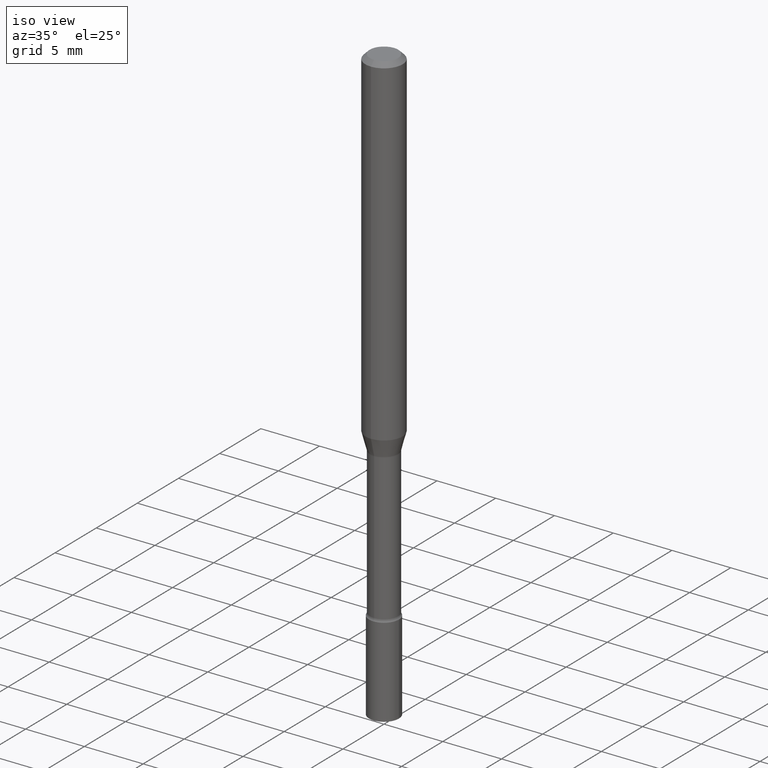
[diagram: clean part render]
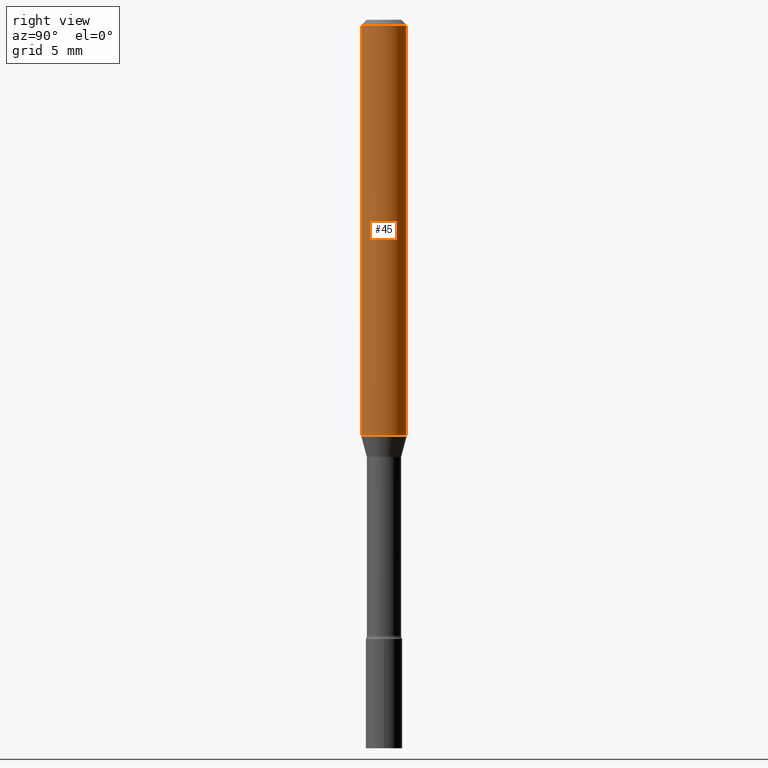
[diagram: tour spotlight — one face highlighted and labeled with its STEP entity id]
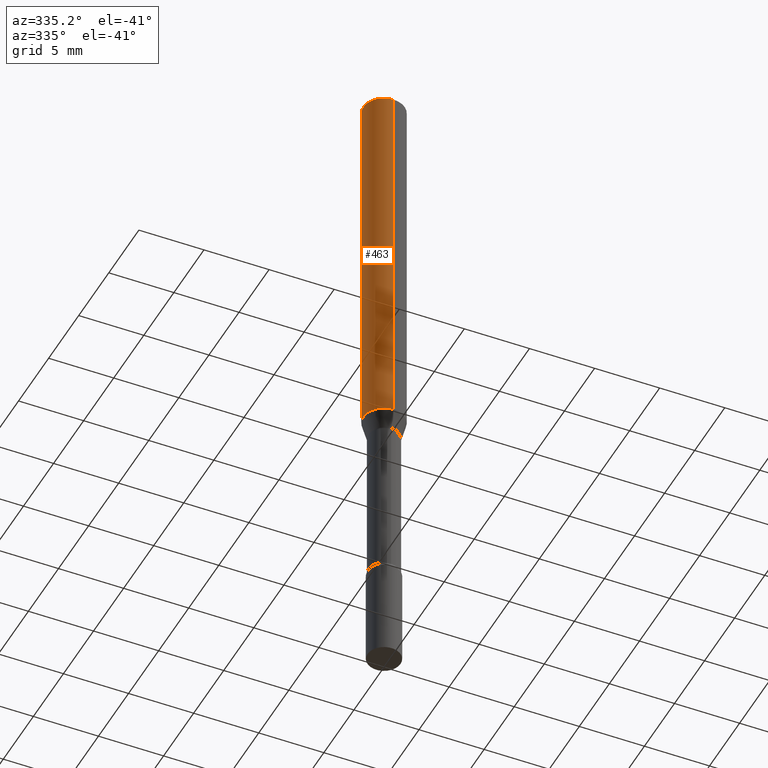
[diagram: tour spotlight — one face highlighted and labeled with its STEP entity id]
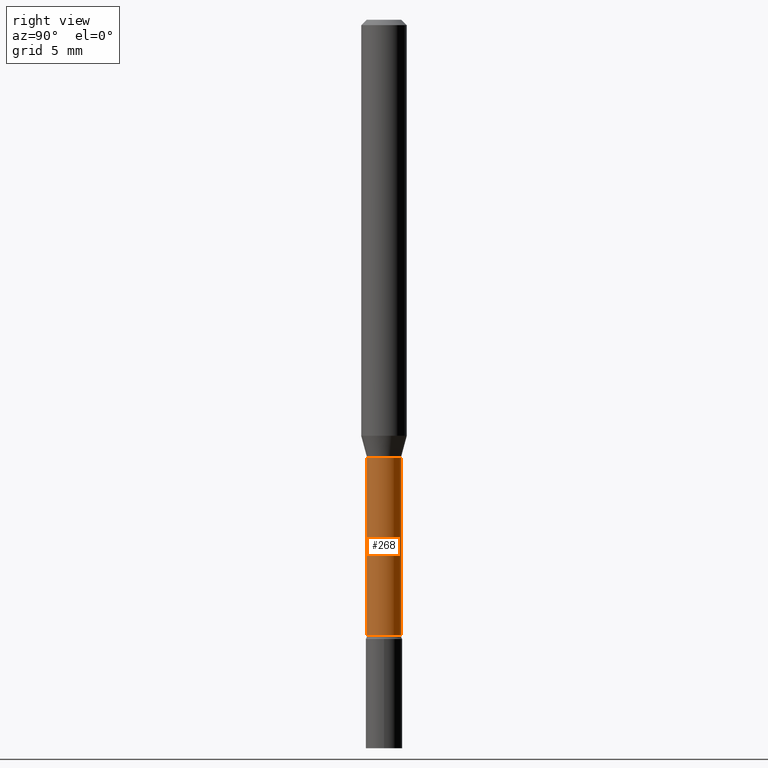
[diagram: tour spotlight — one face highlighted and labeled with its STEP entity id]
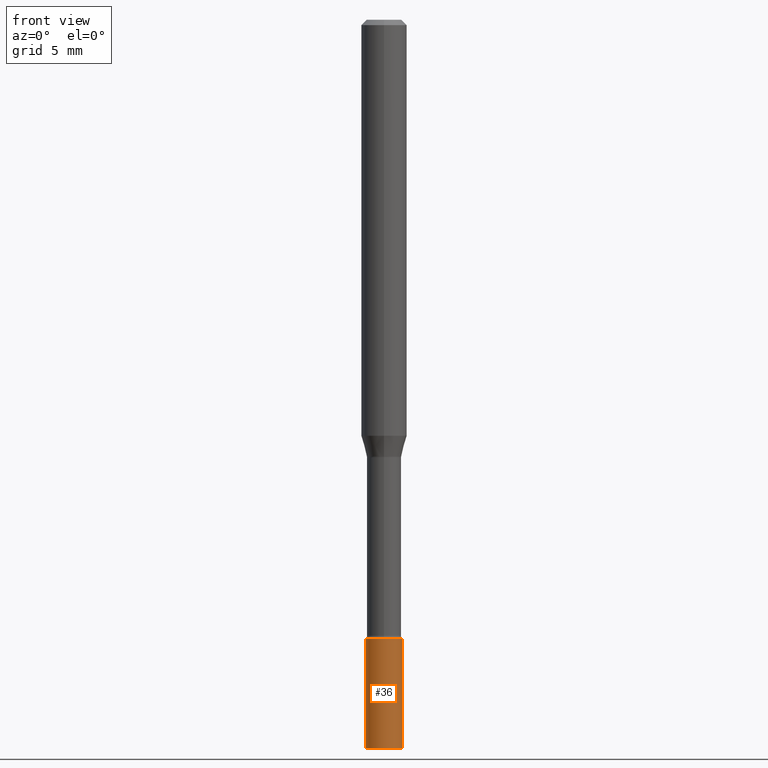
[diagram: tour spotlight — one face highlighted and labeled with its STEP entity id]
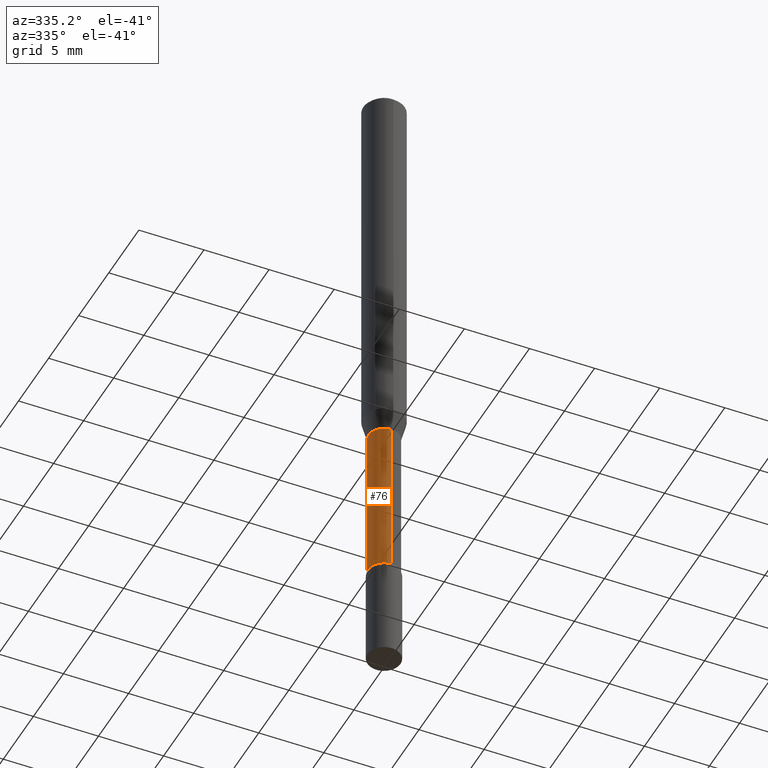
[diagram: tour spotlight — one face highlighted and labeled with its STEP entity id]
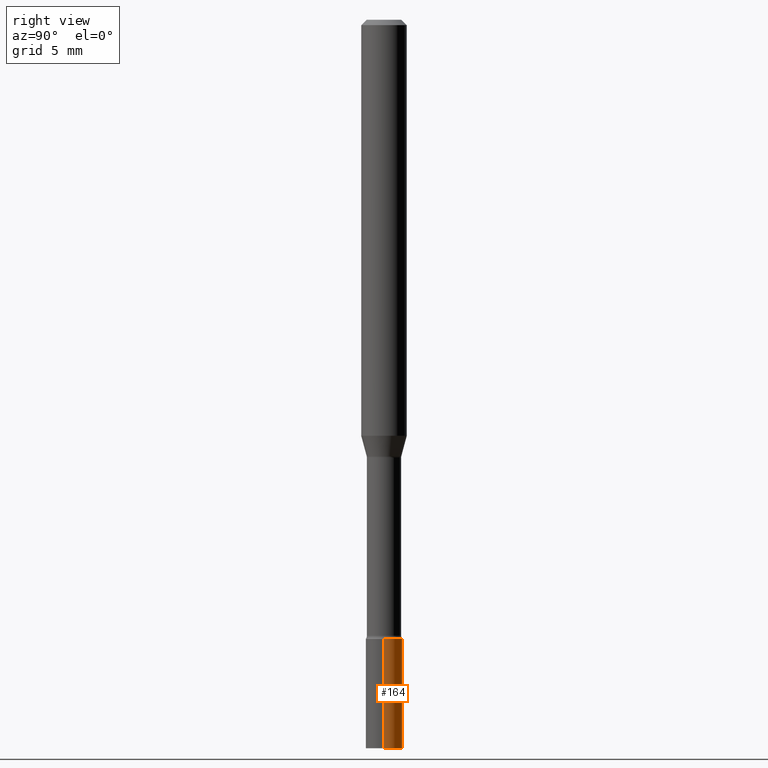
[diagram: tour spotlight — one face highlighted and labeled with its STEP entity id]
A machine part: a face-by-face anatomy tour. The part has 18 B-rep faces; the first image is the clean iso view, then the 6 largest visible faces are spotlighted one at a time (largest first), each with its STEP entity span.

Face 1 — right view, entity #45. In plain terms, the highlighted cylindrical surface (edge-blend (fillet) strip) has radius 1.5875 mm, axis along (-0, 0, 1).
Definition (entity closure, byte-faithful):
#14 = CARTESIAN_POINT ( 'NONE',  ( 3.668101936909137820E-31, -5.237367036060592707E-17, -0.01500000000000003067 ) ) ;
#19 = VERTEX_POINT ( 'NONE', #382 ) ;
#40 = DIRECTION ( 'NONE',  ( -2.445401291272753794E-29, 3.491578024040387972E-15, 1.000000000000000000 ) ) ;
#45 = ADVANCED_FACE ( 'NONE', ( #433 ), #389, .T. ) ;
#71 = CIRCLE ( 'NONE', #313, 0.06250000000000000000 ) ;
#90 = CARTESIAN_POINT ( 'NONE',  ( -4.364351673553912750E-16, -0.06250000000000005551, -0.01499999999999981209 ) ) ;
#116 = EDGE_CURVE ( 'NONE', #19, #227, #289, .T. ) ;
#118 = LINE ( 'NONE', #210, #460 ) ;
#120 = CARTESIAN_POINT ( 'NONE',  ( 2.793022940636475492E-29, -3.987917056791665682E-15, -1.142153212482682312 ) ) ;
#155 = DIRECTION ( 'NONE',  ( -2.445401291272753794E-29, 3.491578024040387972E-15, 1.000000000000000000 ) ) ;
#163 = DIRECTION ( 'NONE',  ( -2.445401291272753794E-29, 3.491578024040387972E-15, 1.000000000000000000 ) ) ;
#165 = CIRCLE ( 'NONE', #231, 0.06250000000000000000 ) ;
#173 = EDGE_CURVE ( 'NONE', #227, #484, #71, .T. ) ;
#207 = DIRECTION ( 'NONE',  ( -6.982962677686265922E-15, -1.000000000000000000, 4.370956789862821150E-15 ) ) ;
#210 = CARTESIAN_POINT ( 'NONE',  ( 4.440892098500625669E-16, 0.06250000000000000000, -2.182236265025242483E-16 ) ) ;
#219 = CARTESIAN_POINT ( 'NONE',  ( 4.440892098500904235E-16, 0.06249999999999600320, -1.142153212482682756 ) ) ;
#221 = EDGE_LOOP ( 'NONE', ( #497, #374, #333, #511 ) ) ;
#227 = VERTEX_POINT ( 'NONE', #90 ) ;
#231 = AXIS2_PLACEMENT_3D ( 'NONE', #120, #40, #207 ) ;
#245 = VERTEX_POINT ( 'NONE', #219 ) ;
#289 = LINE ( 'NONE', #294, #499 ) ;
#294 = CARTESIAN_POINT ( 'NONE',  ( -4.364351673553916201E-16, -0.06250000000000000000, 2.182236265025242483E-16 ) ) ;
#313 = AXIS2_PLACEMENT_3D ( 'NONE', #14, #378, #495 ) ;
#333 = ORIENTED_EDGE ( 'NONE', *, *, #173, .F. ) ;
#364 = EDGE_CURVE ( 'NONE', #245, #484, #118, .T. ) ;
#372 = EDGE_CURVE ( 'NONE', #19, #245, #165, .T. ) ;
#374 = ORIENTED_EDGE ( 'NONE', *, *, #364, .T. ) ;
#378 = DIRECTION ( 'NONE',  ( -2.445401291272753794E-29, 3.491578024040387972E-15, 1.000000000000000000 ) ) ;
#382 = CARTESIAN_POINT ( 'NONE',  ( -4.364351673553637635E-16, -0.06250000000000399680, -1.142153212482682090 ) ) ;
#389 = CYLINDRICAL_SURFACE ( 'NONE', #406, 0.06250000000000000000 ) ;
#406 = AXIS2_PLACEMENT_3D ( 'NONE', #507, #163, #445 ) ;
#433 = FACE_OUTER_BOUND ( 'NONE', #221, .T. ) ;
#445 = DIRECTION ( 'NONE',  ( -6.982962677686265922E-15, -1.000000000000000000, 3.491578024040387972E-15 ) ) ;
#446 = DIRECTION ( 'NONE',  ( -2.445401291272753794E-29, 3.491578024040387972E-15, 1.000000000000000000 ) ) ;
#460 = VECTOR ( 'NONE', #446, 39.37007874015748143 ) ;
#475 = CARTESIAN_POINT ( 'NONE',  ( 4.440892098500906207E-16, 0.06249999999999993755, -0.01500000000000024751 ) ) ;
#484 = VERTEX_POINT ( 'NONE', #475 ) ;
#495 = DIRECTION ( 'NONE',  ( -6.982962677686265922E-15, -1.000000000000000000, 3.483106191921935554E-15 ) ) ;
#497 = ORIENTED_EDGE ( 'NONE', *, *, #372, .T. ) ;
#499 = VECTOR ( 'NONE', #155, 39.37007874015748143 ) ;
#507 = CARTESIAN_POINT ( 'NONE',  ( 0.000000000000000000, 0.000000000000000000, 0.000000000000000000 ) ) ;
#511 = ORIENTED_EDGE ( 'NONE', *, *, #116, .F. ) ;

Face 2 — auxiliary view, entity #463. In plain terms, the highlighted cylindrical surface (edge-blend (fillet) strip) has radius 1.5875 mm, axis along (-0, 0, 1).
Definition (entity closure, byte-faithful):
#19 = VERTEX_POINT ( 'NONE', #382 ) ;
#31 = DIRECTION ( 'NONE',  ( -2.445401291272753794E-29, 3.491578024040387972E-15, 1.000000000000000000 ) ) ;
#32 = DIRECTION ( 'NONE',  ( -2.445401291272753794E-29, 3.491578024040387972E-15, 1.000000000000000000 ) ) ;
#70 = EDGE_LOOP ( 'NONE', ( #412, #199, #104, #387 ) ) ;
#75 = CARTESIAN_POINT ( 'NONE',  ( 0.000000000000000000, 0.000000000000000000, 0.000000000000000000 ) ) ;
#90 = CARTESIAN_POINT ( 'NONE',  ( -4.364351673553912750E-16, -0.06250000000000005551, -0.01499999999999981209 ) ) ;
#96 = AXIS2_PLACEMENT_3D ( 'NONE', #335, #491, #420 ) ;
#104 = ORIENTED_EDGE ( 'NONE', *, *, #116, .T. ) ;
#116 = EDGE_CURVE ( 'NONE', #19, #227, #289, .T. ) ;
#118 = LINE ( 'NONE', #210, #460 ) ;
#129 = CIRCLE ( 'NONE', #96, 0.06250000000000000000 ) ;
#154 = FACE_OUTER_BOUND ( 'NONE', #70, .T. ) ;
#155 = DIRECTION ( 'NONE',  ( -2.445401291272753794E-29, 3.491578024040387972E-15, 1.000000000000000000 ) ) ;
#188 = EDGE_CURVE ( 'NONE', #484, #227, #129, .T. ) ;
#199 = ORIENTED_EDGE ( 'NONE', *, *, #510, .T. ) ;
#210 = CARTESIAN_POINT ( 'NONE',  ( 4.440892098500625669E-16, 0.06250000000000000000, -2.182236265025242483E-16 ) ) ;
#211 = CYLINDRICAL_SURFACE ( 'NONE', #500, 0.06250000000000000000 ) ;
#219 = CARTESIAN_POINT ( 'NONE',  ( 4.440892098500904235E-16, 0.06249999999999600320, -1.142153212482682756 ) ) ;
#227 = VERTEX_POINT ( 'NONE', #90 ) ;
#240 = DIRECTION ( 'NONE',  ( -6.982962677686265922E-15, -1.000000000000000000, 4.370956789862821150E-15 ) ) ;
#245 = VERTEX_POINT ( 'NONE', #219 ) ;
#283 = CARTESIAN_POINT ( 'NONE',  ( 2.793022940636475492E-29, -3.987917056791665682E-15, -1.142153212482682312 ) ) ;
#289 = LINE ( 'NONE', #294, #499 ) ;
#294 = CARTESIAN_POINT ( 'NONE',  ( -4.364351673553916201E-16, -0.06250000000000000000, 2.182236265025242483E-16 ) ) ;
#335 = CARTESIAN_POINT ( 'NONE',  ( 3.668101936909137820E-31, -5.237367036060592707E-17, -0.01500000000000003067 ) ) ;
#346 = CIRCLE ( 'NONE', #365, 0.06250000000000000000 ) ;
#364 = EDGE_CURVE ( 'NONE', #245, #484, #118, .T. ) ;
#365 = AXIS2_PLACEMENT_3D ( 'NONE', #283, #32, #240 ) ;
#382 = CARTESIAN_POINT ( 'NONE',  ( -4.364351673553637635E-16, -0.06250000000000399680, -1.142153212482682090 ) ) ;
#387 = ORIENTED_EDGE ( 'NONE', *, *, #188, .F. ) ;
#412 = ORIENTED_EDGE ( 'NONE', *, *, #364, .F. ) ;
#420 = DIRECTION ( 'NONE',  ( -6.982962677686265922E-15, -1.000000000000000000, 3.483106191921935554E-15 ) ) ;
#446 = DIRECTION ( 'NONE',  ( -2.445401291272753794E-29, 3.491578024040387972E-15, 1.000000000000000000 ) ) ;
#460 = VECTOR ( 'NONE', #446, 39.37007874015748143 ) ;
#463 = ADVANCED_FACE ( 'NONE', ( #154 ), #211, .T. ) ;
#475 = CARTESIAN_POINT ( 'NONE',  ( 4.440892098500906207E-16, 0.06249999999999993755, -0.01500000000000024751 ) ) ;
#484 = VERTEX_POINT ( 'NONE', #475 ) ;
#491 = DIRECTION ( 'NONE',  ( -2.445401291272753794E-29, 3.491578024040387972E-15, 1.000000000000000000 ) ) ;
#499 = VECTOR ( 'NONE', #155, 39.37007874015748143 ) ;
#500 = AXIS2_PLACEMENT_3D ( 'NONE', #75, #31, #514 ) ;
#510 = EDGE_CURVE ( 'NONE', #245, #19, #346, .T. ) ;
#514 = DIRECTION ( 'NONE',  ( -6.982962677686265922E-15, -1.000000000000000000, 3.491578024040387972E-15 ) ) ;

Face 3 — right view, entity #268. In plain terms, the highlighted cylindrical surface (edge-blend (fillet) strip) has radius 1.1938 mm, axis along (-0, 0, 1).
Definition (entity closure, byte-faithful):
#7 = DIRECTION ( 'NONE',  ( -2.445401291272753794E-29, 3.491578024040387972E-15, 1.000000000000000000 ) ) ;
#13 = DIRECTION ( 'NONE',  ( -2.445401291272753794E-29, 3.491578024040387972E-15, 1.000000000000000000 ) ) ;
#92 = DIRECTION ( 'NONE',  ( -6.982962677686265922E-15, -1.000000000000000000, 2.906221269855598900E-15 ) ) ;
#93 = CARTESIAN_POINT ( 'NONE',  ( -3.281992458512548490E-16, -0.04700000000000004868, 1.641041671298983710E-16 ) ) ;
#117 = DIRECTION ( 'NONE',  ( -2.445401291272753794E-29, 3.491578024040387972E-15, 1.000000000000000000 ) ) ;
#122 = AXIS2_PLACEMENT_3D ( 'NONE', #254, #13, #253 ) ;
#131 = LINE ( 'NONE', #93, #147 ) ;
#133 = EDGE_CURVE ( 'NONE', #468, #193, #151, .T. ) ;
#134 = CARTESIAN_POINT ( 'NONE',  ( 2.939310697341296923E-29, -4.196788753359257996E-15, -1.201974787463810701 ) ) ;
#139 = VERTEX_POINT ( 'NONE', #287 ) ;
#147 = VECTOR ( 'NONE', #343, 39.37007874015748143 ) ;
#151 = LINE ( 'NONE', #236, #205 ) ;
#158 = AXIS2_PLACEMENT_3D ( 'NONE', #485, #7, #458 ) ;
#167 = CYLINDRICAL_SURFACE ( 'NONE', #158, 0.04700000000000004868 ) ;
#178 = EDGE_CURVE ( 'NONE', #139, #503, #131, .T. ) ;
#193 = VERTEX_POINT ( 'NONE', #496 ) ;
#200 = CARTESIAN_POINT ( 'NONE',  ( 3.446132268436902621E-16, 0.04699999999999417838, -1.691000000000000281 ) ) ;
#205 = VECTOR ( 'NONE', #117, 39.37007874015748143 ) ;
#220 = EDGE_CURVE ( 'NONE', #503, #193, #397, .T. ) ;
#236 = CARTESIAN_POINT ( 'NONE',  ( 3.339550858072473347E-16, 0.04700000000000004868, -1.641041671298983710E-16 ) ) ;
#243 = CARTESIAN_POINT ( 'NONE',  ( -3.281992458512251188E-16, -0.04700000000000420508, -1.201974787463810701 ) ) ;
#250 = EDGE_CURVE ( 'NONE', #139, #468, #356, .T. ) ;
#253 = DIRECTION ( 'NONE',  ( -6.982962677686265133E-15, -1.000000000000000000, 5.812442539711187545E-15 ) ) ;
#254 = CARTESIAN_POINT ( 'NONE',  ( 4.135173583542227475E-29, -5.904258438652295538E-15, -1.691000000000000059 ) ) ;
#263 = ORIENTED_EDGE ( 'NONE', *, *, #220, .F. ) ;
#268 = ADVANCED_FACE ( 'NONE', ( #336 ), #167, .T. ) ;
#287 = CARTESIAN_POINT ( 'NONE',  ( -3.281992458512137296E-16, -0.04700000000000599532, -1.690999999999999837 ) ) ;
#303 = DIRECTION ( 'NONE',  ( -2.445401291272753794E-29, 3.491578024040387972E-15, 1.000000000000000000 ) ) ;
#310 = EDGE_LOOP ( 'NONE', ( #398, #486, #263, #351 ) ) ;
#336 = FACE_OUTER_BOUND ( 'NONE', #310, .T. ) ;
#343 = DIRECTION ( 'NONE',  ( -2.445401291272753794E-29, 3.491578024040387972E-15, 1.000000000000000000 ) ) ;
#351 = ORIENTED_EDGE ( 'NONE', *, *, #178, .F. ) ;
#356 = CIRCLE ( 'NONE', #122, 0.04700000000000009032 ) ;
#397 = CIRCLE ( 'NONE', #450, 0.04700000000000000705 ) ;
#398 = ORIENTED_EDGE ( 'NONE', *, *, #250, .T. ) ;
#450 = AXIS2_PLACEMENT_3D ( 'NONE', #134, #303, #92 ) ;
#458 = DIRECTION ( 'NONE',  ( -6.982962677686265922E-15, -1.000000000000000000, 3.491578024040387183E-15 ) ) ;
#468 = VERTEX_POINT ( 'NONE', #200 ) ;
#485 = CARTESIAN_POINT ( 'NONE',  ( 0.000000000000000000, 0.000000000000000000, 0.000000000000000000 ) ) ;
#486 = ORIENTED_EDGE ( 'NONE', *, *, #133, .T. ) ;
#496 = CARTESIAN_POINT ( 'NONE',  ( 3.339550858072887499E-16, 0.04699999999999580208, -1.201974787463810923 ) ) ;
#503 = VERTEX_POINT ( 'NONE', #243 ) ;

Face 4 — front view, entity #36. In plain terms, the highlighted cylindrical surface (edge-blend (fillet) strip) has radius 1.27 mm, axis along (-0, 0, 1).
Definition (entity closure, byte-faithful):
#15 = CARTESIAN_POINT ( 'NONE',  ( 4.890937612370273194E-29, -6.982962677686291165E-15, -2.000000000000000000 ) ) ;
#18 = DIRECTION ( 'NONE',  ( -2.445468806185136597E-29, 3.491481338843145583E-15, 1.000000000000000000 ) ) ;
#24 = FACE_OUTER_BOUND ( 'NONE', #321, .T. ) ;
#29 = VECTOR ( 'NONE', #362, 39.37007874015748143 ) ;
#36 = ADVANCED_FACE ( 'NONE', ( #24 ), #470, .T. ) ;
#97 = AXIS2_PLACEMENT_3D ( 'NONE', #435, #101, #428 ) ;
#98 = ORIENTED_EDGE ( 'NONE', *, *, #305, .T. ) ;
#101 = DIRECTION ( 'NONE',  ( -2.445468806185136597E-29, 3.491481338843145583E-15, 1.000000000000000000 ) ) ;
#107 = VERTEX_POINT ( 'NONE', #371 ) ;
#112 = CIRCLE ( 'NONE', #380, 0.05000000000000000278 ) ;
#136 = VERTEX_POINT ( 'NONE', #396 ) ;
#171 = CARTESIAN_POINT ( 'NONE',  ( 4.157296970514731878E-29, -5.935518276033347214E-15, -1.699999999999999956 ) ) ;
#172 = EDGE_CURVE ( 'NONE', #107, #136, #112, .T. ) ;
#177 = DIRECTION ( 'NONE',  ( 1.000000000000000000, -6.982962677686274599E-15, 0.000000000000000000 ) ) ;
#203 = CARTESIAN_POINT ( 'NONE',  ( -0.05000000000000000278, 3.552713678800501127E-16, -2.459467545127453311E-30 ) ) ;
#222 = DIRECTION ( 'NONE',  ( -2.445468806185136597E-29, 3.491481338843145583E-15, 1.000000000000000000 ) ) ;
#232 = VECTOR ( 'NONE', #454, 39.37007874015748143 ) ;
#234 = ORIENTED_EDGE ( 'NONE', *, *, #347, .F. ) ;
#248 = CARTESIAN_POINT ( 'NONE',  ( 0.05000000000000000278, -6.284666409917660550E-15, -1.699999999999999956 ) ) ;
#279 = EDGE_CURVE ( 'NONE', #519, #304, #302, .T. ) ;
#288 = CARTESIAN_POINT ( 'NONE',  ( -0.05000000000000000278, -6.103969108979769176E-15, -1.699999999999999956 ) ) ;
#295 = ORIENTED_EDGE ( 'NONE', *, *, #279, .F. ) ;
#302 = CIRCLE ( 'NONE', #329, 0.05000000000000000278 ) ;
#304 = VERTEX_POINT ( 'NONE', #248 ) ;
#305 = EDGE_CURVE ( 'NONE', #136, #304, #334, .T. ) ;
#321 = EDGE_LOOP ( 'NONE', ( #234, #467, #98, #295 ) ) ;
#329 = AXIS2_PLACEMENT_3D ( 'NONE', #171, #222, #177 ) ;
#334 = LINE ( 'NONE', #410, #232 ) ;
#347 = EDGE_CURVE ( 'NONE', #107, #519, #402, .T. ) ;
#362 = DIRECTION ( 'NONE',  ( -2.445468806185136877E-29, 3.491481338843145188E-15, 1.000000000000000000 ) ) ;
#371 = CARTESIAN_POINT ( 'NONE',  ( -0.05000000000000000278, -6.103969108979769176E-15, -2.000000000000000000 ) ) ;
#380 = AXIS2_PLACEMENT_3D ( 'NONE', #15, #18, #417 ) ;
#396 = CARTESIAN_POINT ( 'NONE',  ( 0.05000000000000000278, -7.332110811570605290E-15, -2.000000000000000000 ) ) ;
#402 = LINE ( 'NONE', #203, #29 ) ;
#410 = CARTESIAN_POINT ( 'NONE',  ( 0.05000000000000000278, -3.491481338843133848E-16, 2.438088387897968247E-30 ) ) ;
#417 = DIRECTION ( 'NONE',  ( 1.000000000000000000, -6.982962677686274599E-15, 0.000000000000000000 ) ) ;
#428 = DIRECTION ( 'NONE',  ( 1.000000000000000000, -6.982962677686267499E-15, 4.876176775795936353E-29 ) ) ;
#435 = CARTESIAN_POINT ( 'NONE',  ( 0.000000000000000000, 0.000000000000000000, 0.000000000000000000 ) ) ;
#454 = DIRECTION ( 'NONE',  ( -2.445468806185136877E-29, 3.491481338843145188E-15, 1.000000000000000000 ) ) ;
#467 = ORIENTED_EDGE ( 'NONE', *, *, #172, .T. ) ;
#470 = CYLINDRICAL_SURFACE ( 'NONE', #97, 0.05000000000000000278 ) ;
#519 = VERTEX_POINT ( 'NONE', #288 ) ;

Face 5 — auxiliary view, entity #76. In plain terms, the highlighted cylindrical surface (edge-blend (fillet) strip) has radius 1.1938 mm, axis along (-0, 0, 1).
Definition (entity closure, byte-faithful):
#25 = ORIENTED_EDGE ( 'NONE', *, *, #50, .F. ) ;
#50 = EDGE_CURVE ( 'NONE', #193, #503, #166, .T. ) ;
#56 = ORIENTED_EDGE ( 'NONE', *, *, #178, .T. ) ;
#72 = DIRECTION ( 'NONE',  ( -2.445401291272753794E-29, 3.491578024040387972E-15, 1.000000000000000000 ) ) ;
#76 = ADVANCED_FACE ( 'NONE', ( #411 ), #124, .T. ) ;
#81 = CIRCLE ( 'NONE', #509, 0.04700000000000009032 ) ;
#83 = CARTESIAN_POINT ( 'NONE',  ( 0.000000000000000000, 0.000000000000000000, 0.000000000000000000 ) ) ;
#87 = DIRECTION ( 'NONE',  ( -6.982962677686265922E-15, -1.000000000000000000, 2.906221269855598900E-15 ) ) ;
#93 = CARTESIAN_POINT ( 'NONE',  ( -3.281992458512548490E-16, -0.04700000000000004868, 1.641041671298983710E-16 ) ) ;
#102 = ORIENTED_EDGE ( 'NONE', *, *, #133, .F. ) ;
#117 = DIRECTION ( 'NONE',  ( -2.445401291272753794E-29, 3.491578024040387972E-15, 1.000000000000000000 ) ) ;
#124 = CYLINDRICAL_SURFACE ( 'NONE', #197, 0.04700000000000004868 ) ;
#131 = LINE ( 'NONE', #93, #147 ) ;
#133 = EDGE_CURVE ( 'NONE', #468, #193, #151, .T. ) ;
#135 = AXIS2_PLACEMENT_3D ( 'NONE', #361, #285, #87 ) ;
#139 = VERTEX_POINT ( 'NONE', #287 ) ;
#147 = VECTOR ( 'NONE', #343, 39.37007874015748143 ) ;
#151 = LINE ( 'NONE', #236, #205 ) ;
#160 = DIRECTION ( 'NONE',  ( -6.982962677686265922E-15, -1.000000000000000000, 3.491578024040387183E-15 ) ) ;
#166 = CIRCLE ( 'NONE', #135, 0.04700000000000000705 ) ;
#178 = EDGE_CURVE ( 'NONE', #139, #503, #131, .T. ) ;
#193 = VERTEX_POINT ( 'NONE', #496 ) ;
#197 = AXIS2_PLACEMENT_3D ( 'NONE', #83, #72, #160 ) ;
#200 = CARTESIAN_POINT ( 'NONE',  ( 3.446132268436902621E-16, 0.04699999999999417838, -1.691000000000000281 ) ) ;
#205 = VECTOR ( 'NONE', #117, 39.37007874015748143 ) ;
#216 = ORIENTED_EDGE ( 'NONE', *, *, #226, .T. ) ;
#226 = EDGE_CURVE ( 'NONE', #468, #139, #81, .T. ) ;
#236 = CARTESIAN_POINT ( 'NONE',  ( 3.339550858072473347E-16, 0.04700000000000004868, -1.641041671298983710E-16 ) ) ;
#243 = CARTESIAN_POINT ( 'NONE',  ( -3.281992458512251188E-16, -0.04700000000000420508, -1.201974787463810701 ) ) ;
#285 = DIRECTION ( 'NONE',  ( -2.445401291272753794E-29, 3.491578024040387972E-15, 1.000000000000000000 ) ) ;
#287 = CARTESIAN_POINT ( 'NONE',  ( -3.281992458512137296E-16, -0.04700000000000599532, -1.690999999999999837 ) ) ;
#293 = DIRECTION ( 'NONE',  ( -6.982962677686265133E-15, -1.000000000000000000, 5.812442539711187545E-15 ) ) ;
#300 = EDGE_LOOP ( 'NONE', ( #102, #216, #56, #25 ) ) ;
#343 = DIRECTION ( 'NONE',  ( -2.445401291272753794E-29, 3.491578024040387972E-15, 1.000000000000000000 ) ) ;
#361 = CARTESIAN_POINT ( 'NONE',  ( 2.939310697341296923E-29, -4.196788753359257996E-15, -1.201974787463810701 ) ) ;
#411 = FACE_OUTER_BOUND ( 'NONE', #300, .T. ) ;
#413 = DIRECTION ( 'NONE',  ( -2.445401291272753794E-29, 3.491578024040387972E-15, 1.000000000000000000 ) ) ;
#419 = CARTESIAN_POINT ( 'NONE',  ( 4.135173583542227475E-29, -5.904258438652295538E-15, -1.691000000000000059 ) ) ;
#468 = VERTEX_POINT ( 'NONE', #200 ) ;
#496 = CARTESIAN_POINT ( 'NONE',  ( 3.339550858072887499E-16, 0.04699999999999580208, -1.201974787463810923 ) ) ;
#503 = VERTEX_POINT ( 'NONE', #243 ) ;
#509 = AXIS2_PLACEMENT_3D ( 'NONE', #419, #413, #293 ) ;

Face 6 — right view, entity #164. In plain terms, the highlighted cylindrical surface (edge-blend (fillet) strip) has radius 1.27 mm, axis along (-0, 0, 1).
Definition (entity closure, byte-faithful):
#8 = DIRECTION ( 'NONE',  ( 1.000000000000000000, -6.982962677686274599E-15, 0.000000000000000000 ) ) ;
#9 = AXIS2_PLACEMENT_3D ( 'NONE', #447, #80, #30 ) ;
#29 = VECTOR ( 'NONE', #362, 39.37007874015748143 ) ;
#30 = DIRECTION ( 'NONE',  ( 1.000000000000000000, -6.982962677686274599E-15, 0.000000000000000000 ) ) ;
#48 = DIRECTION ( 'NONE',  ( -2.445468806185136597E-29, 3.491481338843145583E-15, 1.000000000000000000 ) ) ;
#59 = ORIENTED_EDGE ( 'NONE', *, *, #126, .T. ) ;
#80 = DIRECTION ( 'NONE',  ( -2.445468806185136597E-29, 3.491481338843145583E-15, 1.000000000000000000 ) ) ;
#107 = VERTEX_POINT ( 'NONE', #371 ) ;
#126 = EDGE_CURVE ( 'NONE', #136, #107, #246, .T. ) ;
#136 = VERTEX_POINT ( 'NONE', #396 ) ;
#141 = EDGE_CURVE ( 'NONE', #304, #519, #262, .T. ) ;
#164 = ADVANCED_FACE ( 'NONE', ( #198 ), #358, .T. ) ;
#198 = FACE_OUTER_BOUND ( 'NONE', #434, .T. ) ;
#203 = CARTESIAN_POINT ( 'NONE',  ( -0.05000000000000000278, 3.552713678800501127E-16, -2.459467545127453311E-30 ) ) ;
#213 = CARTESIAN_POINT ( 'NONE',  ( 4.890937612370273194E-29, -6.982962677686291165E-15, -2.000000000000000000 ) ) ;
#232 = VECTOR ( 'NONE', #454, 39.37007874015748143 ) ;
#246 = CIRCLE ( 'NONE', #252, 0.05000000000000000278 ) ;
#248 = CARTESIAN_POINT ( 'NONE',  ( 0.05000000000000000278, -6.284666409917660550E-15, -1.699999999999999956 ) ) ;
#252 = AXIS2_PLACEMENT_3D ( 'NONE', #213, #369, #8 ) ;
#259 = CARTESIAN_POINT ( 'NONE',  ( 0.000000000000000000, 0.000000000000000000, 0.000000000000000000 ) ) ;
#262 = CIRCLE ( 'NONE', #9, 0.05000000000000000278 ) ;
#288 = CARTESIAN_POINT ( 'NONE',  ( -0.05000000000000000278, -6.103969108979769176E-15, -1.699999999999999956 ) ) ;
#304 = VERTEX_POINT ( 'NONE', #248 ) ;
#305 = EDGE_CURVE ( 'NONE', #136, #304, #334, .T. ) ;
#334 = LINE ( 'NONE', #410, #232 ) ;
#337 = DIRECTION ( 'NONE',  ( 1.000000000000000000, -6.982962677686267499E-15, 4.876176775795936353E-29 ) ) ;
#347 = EDGE_CURVE ( 'NONE', #107, #519, #402, .T. ) ;
#358 = CYLINDRICAL_SURFACE ( 'NONE', #483, 0.05000000000000000278 ) ;
#362 = DIRECTION ( 'NONE',  ( -2.445468806185136877E-29, 3.491481338843145188E-15, 1.000000000000000000 ) ) ;
#369 = DIRECTION ( 'NONE',  ( -2.445468806185136597E-29, 3.491481338843145583E-15, 1.000000000000000000 ) ) ;
#371 = CARTESIAN_POINT ( 'NONE',  ( -0.05000000000000000278, -6.103969108979769176E-15, -2.000000000000000000 ) ) ;
#383 = ORIENTED_EDGE ( 'NONE', *, *, #305, .F. ) ;
#390 = ORIENTED_EDGE ( 'NONE', *, *, #141, .F. ) ;
#396 = CARTESIAN_POINT ( 'NONE',  ( 0.05000000000000000278, -7.332110811570605290E-15, -2.000000000000000000 ) ) ;
#402 = LINE ( 'NONE', #203, #29 ) ;
#410 = CARTESIAN_POINT ( 'NONE',  ( 0.05000000000000000278, -3.491481338843133848E-16, 2.438088387897968247E-30 ) ) ;
#424 = ORIENTED_EDGE ( 'NONE', *, *, #347, .T. ) ;
#434 = EDGE_LOOP ( 'NONE', ( #59, #424, #390, #383 ) ) ;
#447 = CARTESIAN_POINT ( 'NONE',  ( 4.157296970514731878E-29, -5.935518276033347214E-15, -1.699999999999999956 ) ) ;
#454 = DIRECTION ( 'NONE',  ( -2.445468806185136877E-29, 3.491481338843145188E-15, 1.000000000000000000 ) ) ;
#483 = AXIS2_PLACEMENT_3D ( 'NONE', #259, #48, #337 ) ;
#519 = VERTEX_POINT ( 'NONE', #288 ) ;